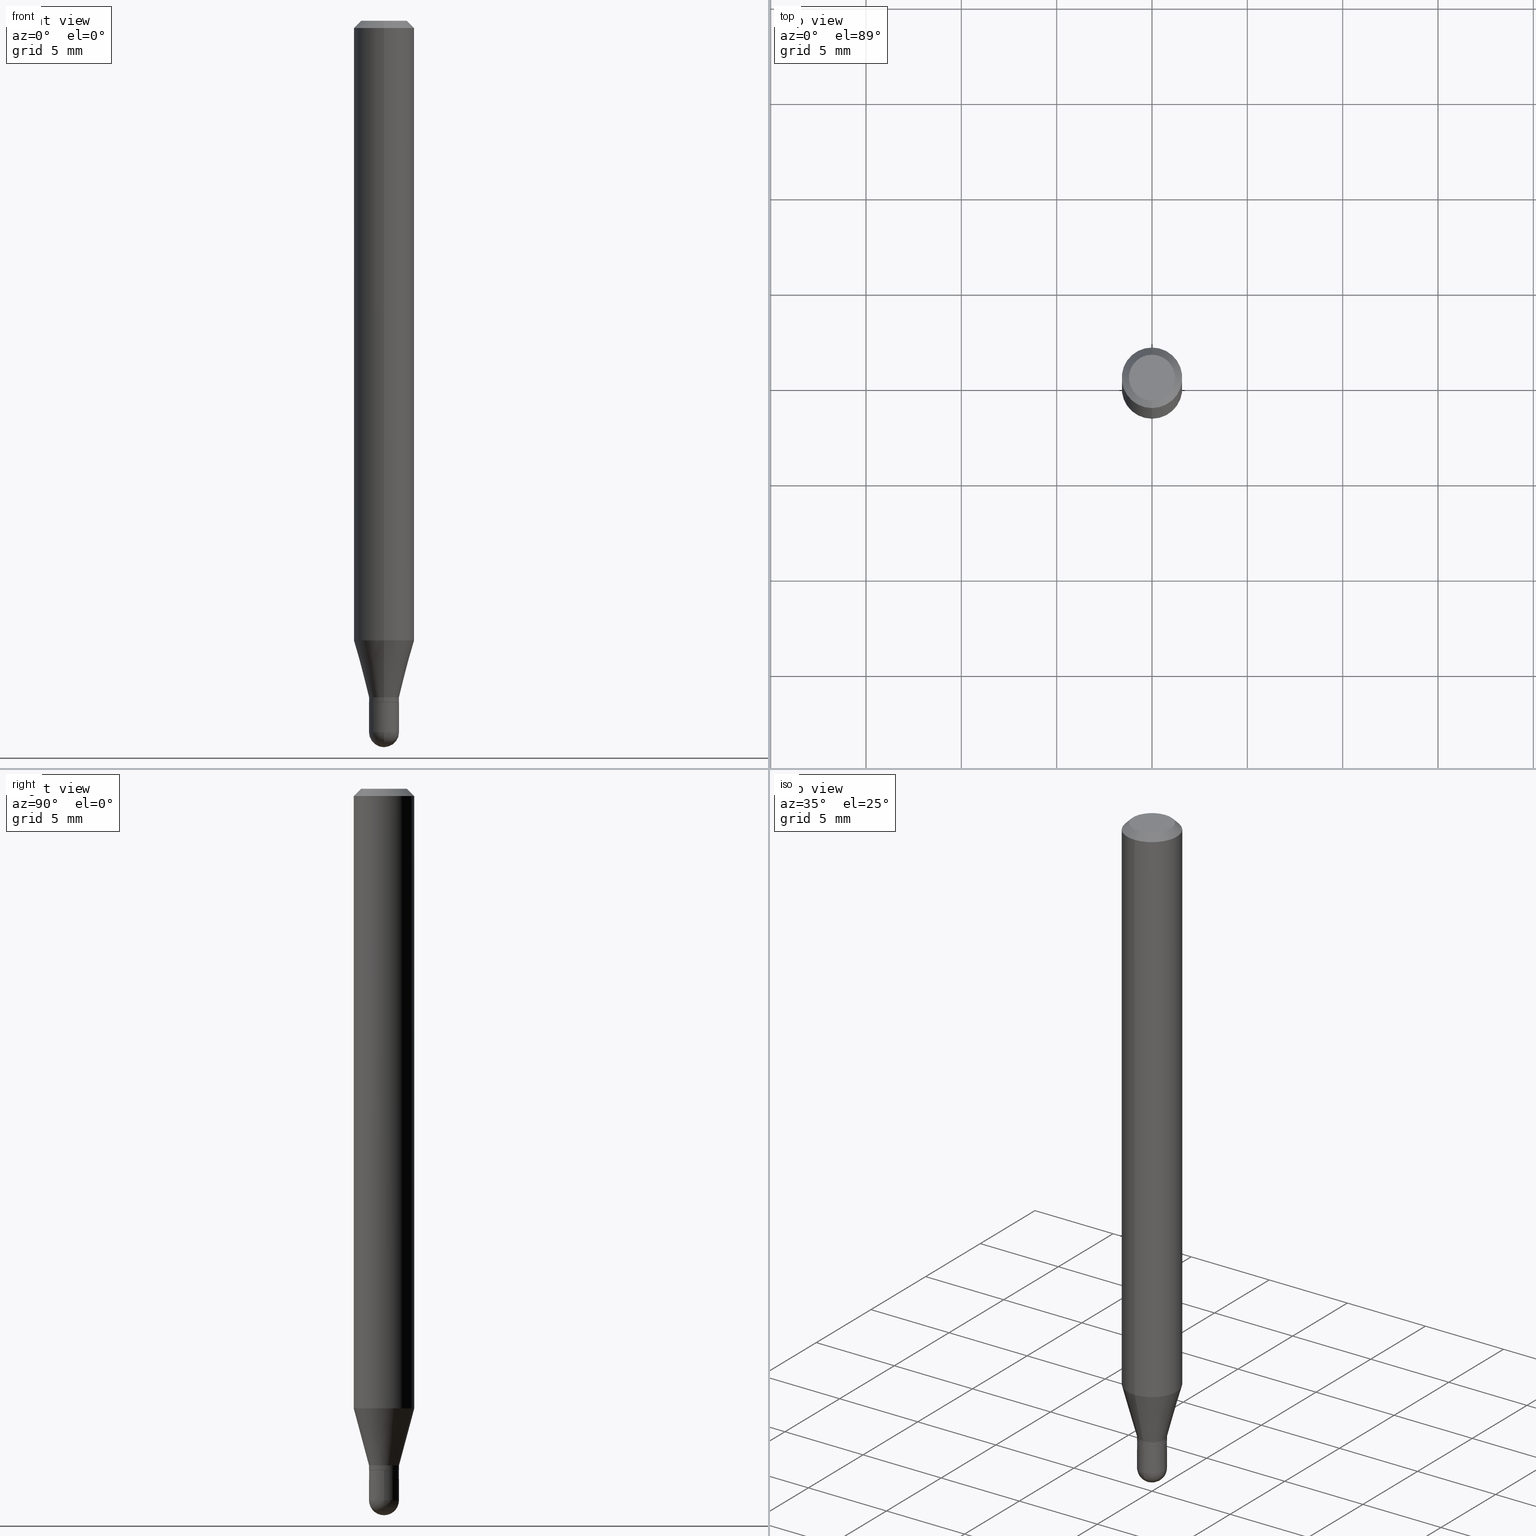
[diagram: canonical four-view strip — front | top / right | iso, engineering-drawing reading convention]
A machine part, canonical four-view strip (front | top / right | iso — engineering-drawing reading convention). The complete STEP part file that produces these views, byte-faithful:
ISO-10303-21;
HEADER;
FILE_DESCRIPTION (( 'STEP AP203' ),
    '1' );
FILE_NAME ('00796.STEP',
    '2024-03-07T18:24:14',
    ( '' ),
    ( '' ),
    'SwSTEP 2.0',
    'SolidWorks 2023',
    '' );
FILE_SCHEMA (( 'CONFIG_CONTROL_DESIGN' ));
ENDSEC;

DATA;
#1 = DIRECTION ( 'NONE',  ( 1.000000000000000000, -6.982962677686270655E-15, 0.000000000000000000 ) ) ;
#2 = EDGE_CURVE ( 'NONE', #411, #135, #207, .T. ) ;
#3 = VERTEX_POINT ( 'NONE', #219 ) ;
#4 = CARTESIAN_POINT ( 'NONE',  ( 3.440812931536846733E-29, -4.912459365563593264E-15, -1.407000000000000028 ) ) ;
#5 = AXIS2_PLACEMENT_3D ( 'NONE', #383, #31, #355 ) ;
#6 = CONICAL_SURFACE ( 'NONE', #449, 0.06250000000000000000, 0.7853981633974483900 ) ;
#7 = LOCAL_TIME ( 13, 24, 14.00000000000000000, #352 ) ;
#8 = DIRECTION ( 'NONE',  ( -4.937700262164674260E-15, -0.7071067811865632269, 0.7071067811865319186 ) ) ;
#9 = CARTESIAN_POINT ( 'NONE',  ( -2.164718430082737148E-16, -0.03099999999999992345, 1.082347123898159394E-16 ) ) ;
#10 = CYLINDRICAL_SURFACE ( 'NONE', #507, 0.03099999999999992345 ) ;
#11 = ADVANCED_FACE ( 'NONE', ( #196 ), #111, .F. ) ;
#12 = CARTESIAN_POINT ( 'NONE',  ( -2.202682480855951629E-16, -0.03100000000000513803, -1.469000000000000083 ) ) ;
#13 = CARTESIAN_POINT ( 'NONE',  ( -4.364351673553605094E-16, -0.06250000000000448253, -1.279440399561580399 ) ) ;
#14 = ORIENTED_EDGE ( 'NONE', *, *, #43, .F. ) ;
#15 = DIRECTION ( 'NONE',  ( 2.445496042314745397E-29, -3.491442335155361584E-15, -1.000000000000000000 ) ) ;
#16 = AXIS2_PLACEMENT_3D ( 'NONE', #4, #289, #444 ) ;
#17 = DIRECTION ( 'NONE',  ( -6.982962677686265922E-15, -1.000000000000000000, 3.491442335155361584E-15 ) ) ;
#18 = ORIENTED_EDGE ( 'NONE', *, *, #283, .T. ) ;
#19 = EDGE_CURVE ( 'NONE', #32, #107, #314, .T. ) ;
#20 = DIRECTION ( 'NONE',  ( 1.000000000000000000, -6.982962677686266711E-15, 4.876176775795935232E-29 ) ) ;
#21 = ORIENTED_EDGE ( 'NONE', *, *, #290, .T. ) ;
#22 = DIRECTION ( 'NONE',  ( 1.000000000000000000, -6.982962677686270655E-15, 0.000000000000000000 ) ) ;
#23 = DIRECTION ( 'NONE',  ( 5.024295867788190974E-15, 0.7071067811865681119, 0.7071067811865270336 ) ) ;
#24 = APPROVAL_STATUS ( 'not_yet_approved' ) ;
#25 = VERTEX_POINT ( 'NONE', #389 ) ;
#26 = LOCAL_TIME ( 13, 24, 14.00000000000000000, #242 ) ;
#27 = ORIENTED_EDGE ( 'NONE', *, *, #375, .T. ) ;
#28 = FACE_OUTER_BOUND ( 'NONE', #61, .T. ) ;
#29 = ADVANCED_FACE ( 'NONE', ( #501 ), #394, .T. ) ;
#30 = PERSON_AND_ORGANIZATION ( #208, #146 ) ;
#31 = DIRECTION ( 'NONE',  ( 2.445496042314745116E-29, -3.491442335155361584E-15, -1.000000000000000000 ) ) ;
#32 = VERTEX_POINT ( 'NONE', #267 ) ;
#33 = CALENDAR_DATE ( 2024, 7, 3 ) ;
#34 = DIRECTION ( 'NONE',  ( -2.445468806185136597E-29, 3.491481338843145583E-15, 1.000000000000000000 ) ) ;
#35 = VECTOR ( 'NONE', #23, 39.37007874015748143 ) ;
#36 = EDGE_CURVE ( 'NONE', #382, #107, #152, .T. ) ;
#37 = DIRECTION ( 'NONE',  ( -1.000000000000000000, 6.982962677686265922E-15, -4.883557194083112340E-29 ) ) ;
#38 = EDGE_LOOP ( 'NONE', ( #202, #471 ) ) ;
#39 = CARTESIAN_POINT ( 'NONE',  ( 2.164718430083101997E-16, 0.03099999999999487540, -1.469000000000000083 ) ) ;
#40 = ADVANCED_FACE ( 'NONE', ( #28 ), #308, .T. ) ;
#41 = CLOSED_SHELL ( 'NONE', ( #412, #223, #391, #420, #189 ) ) ;
#42 = DIRECTION ( 'NONE',  ( -2.445496042314745397E-29, 3.491442335155361584E-15, 1.000000000000000000 ) ) ;
#43 = EDGE_CURVE ( 'NONE', #99, #282, #372, .T. ) ;
#44 = CARTESIAN_POINT ( 'NONE',  ( 3.440812931536846733E-29, -4.912459365563593264E-15, -1.407000000000000028 ) ) ;
#45 = ORIENTED_EDGE ( 'NONE', *, *, #118, .T. ) ;
#46 = DIRECTION ( 'NONE',  ( 6.982962677686265922E-15, 1.000000000000000000, 0.000000000000000000 ) ) ;
#47 = DIRECTION ( 'NONE',  ( -2.445496042314745397E-29, 3.491442335155361584E-15, 1.000000000000000000 ) ) ;
#48 = CIRCLE ( 'NONE', #130, 0.03099999999999991651 ) ;
#49 = PRODUCT_DEFINITION_FORMATION_WITH_SPECIFIED_SOURCE ( 'ANY', '', #206, .NOT_KNOWN. ) ;
#50 = EDGE_CURVE ( 'NONE', #107, #32, #284, .T. ) ;
#51 = CARTESIAN_POINT ( 'NONE',  ( 3.416357971113700377E-29, -4.877544942212040003E-15, -1.397000000000000242 ) ) ;
#52 = CARTESIAN_POINT ( 'NONE',  ( 0.000000000000000000, 0.000000000000000000, 0.000000000000000000 ) ) ;
#53 = DIRECTION ( 'NONE',  ( -2.445468806185136597E-29, 3.491481338843145583E-15, 1.000000000000000000 ) ) ;
#54 = CARTESIAN_POINT ( 'NONE',  ( 4.440892098500940720E-16, 0.06249999999999995143, -0.01500000000000022669 ) ) ;
#55 = EDGE_LOOP ( 'NONE', ( #231, #370, #178, #95 ) ) ;
#56 = FACE_OUTER_BOUND ( 'NONE', #145, .T. ) ;
#57 = CARTESIAN_POINT ( 'NONE',  ( 2.164718430083086219E-16, 0.03099999999999508704, -1.407000000000000028 ) ) ;
#58 = ORIENTED_EDGE ( 'NONE', *, *, #19, .F. ) ;
#59 = AXIS2_PLACEMENT_3D ( 'NONE', #461, #276, #73 ) ;
#60 = CIRCLE ( 'NONE', #201, 0.06250000000000000000 ) ;
#61 = EDGE_LOOP ( 'NONE', ( #436, #187, #226, #392 ) ) ;
#62 = DIRECTION ( 'NONE',  ( -2.445496042314745397E-29, 3.491442335155361584E-15, 1.000000000000000000 ) ) ;
#63 = ADVANCED_BREP_SHAPE_REPRESENTATION ( '00796', ( #332, #340, #159 ), #359 ) ;
#64 = ORIENTED_EDGE ( 'NONE', *, *, #380, .F. ) ;
#65 = APPROVAL ( #344, 'UNSPECIFIED' ) ;
#66 = DATE_AND_TIME ( #33, #324 ) ;
#67 = VERTEX_POINT ( 'NONE', #244 ) ;
#68 = DIRECTION ( 'NONE',  ( -1.807323732225332900E-15, -0.2588190451025185190, 0.9659258262890689783 ) ) ;
#69 = CIRCLE ( 'NONE', #336, 0.03099999999999999978 ) ;
#70 = DIRECTION ( 'NONE',  ( -6.982962677686265922E-15, -1.000000000000000000, 3.491442335155361190E-15 ) ) ;
#71 = ORIENTED_EDGE ( 'NONE', *, *, #118, .F. ) ;
#72 = ORIENTED_EDGE ( 'NONE', *, *, #81, .F. ) ;
#73 = DIRECTION ( 'NONE',  ( -6.982962677686265922E-15, -1.000000000000000000, 4.370956789862821150E-15 ) ) ;
#74 = EDGE_CURVE ( 'NONE', #184, #266, #456, .T. ) ;
#75 = DIRECTION ( 'NONE',  ( 1.000000000000000000, -6.982962677686270655E-15, 0.000000000000000000 ) ) ;
#76 = CIRCLE ( 'NONE', #144, 0.03100000000000001713 ) ;
#77 = CIRCLE ( 'NONE', #16, 0.03049999999999999586 ) ;
#78 = CONICAL_SURFACE ( 'NONE', #511, 0.06250000000000000000, 0.7853981633974483900 ) ;
#79 = CC_DESIGN_PERSON_AND_ORGANIZATION_ASSIGNMENT ( #236, #310, ( #206 ) ) ;
#80 = ORIENTED_EDGE ( 'NONE', *, *, #108, .F. ) ;
#81 = EDGE_CURVE ( 'NONE', #25, #432, #76, .T. ) ;
#82 = CARTESIAN_POINT ( 'NONE',  ( 3.440774610302487541E-29, -4.912514243752305891E-15, -1.407000000000000028 ) ) ;
#83 = CONICAL_SURFACE ( 'NONE', #274, 0.03099999999999991651, 0.2617993877991506291 ) ;
#84 = DIRECTION ( 'NONE',  ( 4.937700262164548042E-15, 0.7071067811865451302, -0.7071067811865499042 ) ) ;
#85 = CARTESIAN_POINT ( 'NONE',  ( 0.000000000000000000, 0.000000000000000000, 0.000000000000000000 ) ) ;
#86 = DIRECTION ( 'NONE',  ( -6.982962677686265922E-15, -1.000000000000000000, 0.000000000000000000 ) ) ;
#87 = DIMENSIONAL_EXPONENTS ( 1.000000000000000000, 0.000000000000000000, 0.000000000000000000, 0.000000000000000000, 0.000000000000000000, 0.000000000000000000, 0.000000000000000000 ) ;
#88 = CARTESIAN_POINT ( 'NONE',  ( 3.668244063472120582E-31, -5.237163502733045828E-17, -0.01500000000000000812 ) ) ;
#89 = DIRECTION ( 'NONE',  ( -2.445496042314745397E-29, 3.491442335155361584E-15, 1.000000000000000000 ) ) ;
#90 = AXIS2_PLACEMENT_3D ( 'NONE', #402, #489, #86 ) ;
#91 = DIRECTION ( 'NONE',  ( -2.445468806185136597E-29, 3.491481338843145583E-15, 1.000000000000000000 ) ) ;
#92 = DIRECTION ( 'NONE',  ( -2.445496042314745397E-29, 3.491442335155361584E-15, 1.000000000000000000 ) ) ;
#93 = APPROVAL ( #378, 'UNSPECIFIED' ) ;
#94 = CARTESIAN_POINT ( 'NONE',  ( -4.364351673553916201E-16, -0.06250000000000000000, 2.182151459472100744E-16 ) ) ;
#95 = ORIENTED_EDGE ( 'NONE', *, *, #506, .F. ) ;
#96 = DIRECTION ( 'NONE',  ( -2.445468806185136597E-29, 3.491481338843145583E-15, 1.000000000000000000 ) ) ;
#97 = DIRECTION ( 'NONE',  ( -2.445496042314745397E-29, 3.491442335155361584E-15, 1.000000000000000000 ) ) ;
#98 = AXIS2_PLACEMENT_3D ( 'NONE', #430, #346, #422 ) ;
#99 = VERTEX_POINT ( 'NONE', #438 ) ;
#100 = CIRCLE ( 'NONE', #247, 0.03049999999999999586 ) ;
#101 = APPLICATION_PROTOCOL_DEFINITION ( 'international standard', 'config_control_design', 1994, #400 ) ;
#102 = APPROVAL_ROLE ( '' ) ;
#103 = ADVANCED_FACE ( 'NONE', ( #292 ), #350, .T. ) ;
#104 = ORIENTED_EDGE ( 'NONE', *, *, #108, .T. ) ;
#105 = CARTESIAN_POINT ( 'NONE',  ( 3.321787289678792287E-16, 0.03099999999999503500, -1.397000000000000242 ) ) ;
#106 = DATE_AND_TIME ( #462, #315 ) ;
#107 = VERTEX_POINT ( 'NONE', #13 ) ;
#108 = EDGE_CURVE ( 'NONE', #192, #411, #215, .T. ) ;
#109 = PERSON_AND_ORGANIZATION ( #208, #146 ) ;
#110 = ORIENTED_EDGE ( 'NONE', *, *, #408, .T. ) ;
#111 = PLANE ( 'NONE',  #5 ) ;
#112 = CIRCLE ( 'NONE', #487, 0.03099999999999991651 ) ;
#113 = ORIENTED_EDGE ( 'NONE', *, *, #293, .F. ) ;
#114 = DATE_TIME_ROLE ( 'classification_date' ) ;
#115 = DIRECTION ( 'NONE',  ( 1.000000000000000000, -6.982962677686270655E-15, 0.000000000000000000 ) ) ;
#116 = AXIS2_PLACEMENT_3D ( 'NONE', #248, #96, #75 ) ;
#117 = EDGE_LOOP ( 'NONE', ( #263, #154, #162, #427 ) ) ;
#118 = EDGE_CURVE ( 'NONE', #99, #266, #329, .T. ) ;
#119 = ADVANCED_FACE ( 'NONE', ( #183 ), #331, .T. ) ;
#120 = FACE_OUTER_BOUND ( 'NONE', #249, .T. ) ;
#121 = DIRECTION ( 'NONE',  ( -6.982962677686265922E-15, -1.000000000000000000, 3.491442335155361584E-15 ) ) ;
#122 =( CONVERSION_BASED_UNIT ( 'INCH', #297 ) LENGTH_UNIT ( ) NAMED_UNIT ( #87 ) );
#123 = AXIS2_PLACEMENT_3D ( 'NONE', #486, #302, #132 ) ;
#124 = UNCERTAINTY_MEASURE_WITH_UNIT (LENGTH_MEASURE( 1.000000000000000082E-05 ), #122, 'distance_accuracy_value', 'NONE');
#125 = CARTESIAN_POINT ( 'NONE',  ( -4.364351673553912750E-16, -0.06250000000000005551, -0.01499999999999979128 ) ) ;
#126 = DIRECTION ( 'NONE',  ( -1.000000000000000000, 7.105427357601001070E-15, -4.926315508542082329E-29 ) ) ;
#127 = DIRECTION ( 'NONE',  ( 1.000000000000000000, -6.982962677686266711E-15, 4.876176775795935232E-29 ) ) ;
#128 = DIRECTION ( 'NONE',  ( 1.839019923739602682E-15, 0.2588190451025252914, 0.9659258262890670910 ) ) ;
#129 = APPLICATION_CONTEXT ( 'configuration controlled 3d designs of mechanical parts and assemblies' ) ;
#130 = AXIS2_PLACEMENT_3D ( 'NONE', #300, #97, #492 ) ;
#131 = CC_DESIGN_APPROVAL ( #211, ( #49 ) ) ;
#132 = DIRECTION ( 'NONE',  ( -6.982962677686265922E-15, -1.000000000000000000, 0.000000000000000000 ) ) ;
#133 =( LENGTH_UNIT ( ) NAMED_UNIT ( * ) SI_UNIT ( $, .METRE. ) );
#134 = DIRECTION ( 'NONE',  ( -6.982962677686266711E-15, -1.000000000000000000, 3.491442335155361979E-15 ) ) ;
#135 = VERTEX_POINT ( 'NONE', #125 ) ;
#136 = EDGE_CURVE ( 'NONE', #32, #238, #262, .T. ) ;
#137 = DIRECTION ( 'NONE',  ( -6.982962677686266711E-15, -1.000000000000000000, 0.000000000000000000 ) ) ;
#138 = LINE ( 'NONE', #454, #428 ) ;
#139 = ORIENTED_EDGE ( 'NONE', *, *, #36, .F. ) ;
#140 = DIRECTION ( 'NONE',  ( 1.000000000000000000, -6.982962677686270655E-15, 0.000000000000000000 ) ) ;
#141 = LINE ( 'NONE', #94, #335 ) ;
#142 = ADVANCED_FACE ( 'NONE', ( #485 ), #6, .T. ) ;
#143 = PERSON_AND_ORGANIZATION ( #208, #146 ) ;
#144 = AXIS2_PLACEMENT_3D ( 'NONE', #235, #188, #245 ) ;
#145 = EDGE_LOOP ( 'NONE', ( #358, #80, #460, #311 ) ) ;
#146 = ORGANIZATION ( 'UNSPECIFIED', 'UNSPECIFIED', '' ) ;
#147 = CARTESIAN_POINT ( 'NONE',  ( -2.164718430082395226E-16, -0.03100000000000479802, -1.397000000000000242 ) ) ;
#148 = DIRECTION ( 'NONE',  ( 0.000000000000000000, 0.000000000000000000, 1.000000000000000000 ) ) ;
#149 = ADVANCED_FACE ( 'NONE', ( #367 ), #10, .T. ) ;
#150 = APPROVAL_DATE_TIME ( #306, #65 ) ;
#151 = ORIENTED_EDGE ( 'NONE', *, *, #273, .F. ) ;
#152 = LINE ( 'NONE', #157, #466 ) ;
#153 = SECURITY_CLASSIFICATION_LEVEL ( 'unclassified' ) ;
#154 = ORIENTED_EDGE ( 'NONE', *, *, #364, .T. ) ;
#155 = DIRECTION ( 'NONE',  ( -6.982962677686265922E-15, -1.000000000000000000, 0.000000000000000000 ) ) ;
#156 = DATE_TIME_ROLE ( 'creation_date' ) ;
#157 = CARTESIAN_POINT ( 'NONE',  ( -2.164718430082395226E-16, -0.03100000000000479802, -1.397000000000000242 ) ) ;
#158 = CIRCLE ( 'NONE', #439, 0.03099999999999999978 ) ;
#159 = AXIS2_PLACEMENT_3D ( 'NONE', #416, #148, #268 ) ;
#160 = DIRECTION ( 'NONE',  ( -2.445496042314745397E-29, 3.491442335155361584E-15, 1.000000000000000000 ) ) ;
#161 = DIRECTION ( 'NONE',  ( -2.445496042314745397E-29, 3.491442335155361584E-15, 1.000000000000000000 ) ) ;
#162 = ORIENTED_EDGE ( 'NONE', *, *, #470, .F. ) ;
#163 = CC_DESIGN_PERSON_AND_ORGANIZATION_ASSIGNMENT ( #194, #353, ( #349 ) ) ;
#164 = AXIS2_PLACEMENT_3D ( 'NONE', #480, #37, #203 ) ;
#165 = SPHERICAL_SURFACE ( 'NONE', #164, 0.03100000000000001713 ) ;
#166 = DIRECTION ( 'NONE',  ( -6.982962677686266711E-15, -1.000000000000000000, 0.000000000000000000 ) ) ;
#167 = ORIENTED_EDGE ( 'NONE', *, *, #477, .T. ) ;
#168 = DIRECTION ( 'NONE',  ( -6.982962677686265922E-15, -1.000000000000000000, 3.491442335155361584E-15 ) ) ;
#169 = AXIS2_PLACEMENT_3D ( 'NONE', #82, #476, #1 ) ;
#170 = FACE_OUTER_BOUND ( 'NONE', #313, .T. ) ;
#171 = CARTESIAN_POINT ( 'NONE',  ( 3.668244063472120582E-31, -5.237163502733045828E-17, -0.01500000000000000812 ) ) ;
#172 = CARTESIAN_POINT ( 'NONE',  ( -2.164718430082400403E-16, -0.03100000000000494027, -1.406500000000000083 ) ) ;
#173 = EDGE_CURVE ( 'NONE', #382, #390, #48, .T. ) ;
#174 = DIRECTION ( 'NONE',  ( -2.445468806185136877E-29, 3.491481338843145188E-15, 1.000000000000000000 ) ) ;
#175 = DIRECTION ( 'NONE',  ( -2.445468806185136597E-29, 3.491481338843145583E-15, 1.000000000000000000 ) ) ;
#176 = AXIS2_PLACEMENT_3D ( 'NONE', #424, #160, #155 ) ;
#177 = AXIS2_PLACEMENT_3D ( 'NONE', #57, #333, #278 ) ;
#178 = ORIENTED_EDGE ( 'NONE', *, *, #173, .F. ) ;
#179 = VECTOR ( 'NONE', #92, 39.37007874015748143 ) ;
#180 = DIRECTION ( 'NONE',  ( 6.982962677686265922E-15, 1.000000000000000000, -3.483106191921935554E-15 ) ) ;
#181 = CARTESIAN_POINT ( 'NONE',  ( 3.416357971113700377E-29, -4.877544942212040003E-15, -1.397000000000000242 ) ) ;
#182 = DIRECTION ( 'NONE',  ( 1.000000000000000000, -6.982962677686270655E-15, 0.000000000000000000 ) ) ;
#183 = FACE_OUTER_BOUND ( 'NONE', #323, .T. ) ;
#184 = VERTEX_POINT ( 'NONE', #341 ) ;
#185 = EDGE_CURVE ( 'NONE', #192, #238, #138, .T. ) ;
#186 = DATE_AND_TIME ( #508, #7 ) ;
#187 = ORIENTED_EDGE ( 'NONE', *, *, #19, .T. ) ;
#188 = DIRECTION ( 'NONE',  ( 1.000000000000000000, -6.982962677686265922E-15, 4.883557194083112340E-29 ) ) ;
#189 = ADVANCED_FACE ( 'NONE', ( #366 ), #319, .T. ) ;
#190 = CARTESIAN_POINT ( 'NONE',  ( 3.439590183515689387E-29, -4.910713644396017139E-15, -1.406500000000000083 ) ) ;
#191 = PERSON_AND_ORGANIZATION ( #208, #146 ) ;
#192 = VERTEX_POINT ( 'NONE', #294 ) ;
#193 = AXIS2_PLACEMENT_3D ( 'NONE', #415, #175, #20 ) ;
#194 = PERSON_AND_ORGANIZATION ( #208, #146 ) ;
#195 = ORIENTED_EDGE ( 'NONE', *, *, #477, .F. ) ;
#196 = FACE_OUTER_BOUND ( 'NONE', #301, .T. ) ;
#197 = EDGE_CURVE ( 'NONE', #266, #184, #199, .T. ) ;
#198 = ORIENTED_EDGE ( 'NONE', *, *, #506, .T. ) ;
#199 = CIRCLE ( 'NONE', #169, 0.03099999999999999978 ) ;
#200 = CARTESIAN_POINT ( 'NONE',  ( 0.03099999999999999978, -2.164718430082742572E-16, 1.511614800496739984E-30 ) ) ;
#201 = AXIS2_PLACEMENT_3D ( 'NONE', #88, #258, #406 ) ;
#202 = ORIENTED_EDGE ( 'NONE', *, *, #74, .T. ) ;
#203 = DIRECTION ( 'NONE',  ( 6.982962677686265922E-15, 1.000000000000000000, 0.000000000000000000 ) ) ;
#204 = ADVANCED_FACE ( 'NONE', ( #446 ), #291, .T. ) ;
#205 = EDGE_LOOP ( 'NONE', ( #113, #21, #493, #58 ) ) ;
#206 = PRODUCT ( '00796', '00796', '', ( #233 ) ) ;
#207 = LINE ( 'NONE', #399, #321 ) ;
#208 = PERSON ( 'UNSPECIFIED', 'UNSPECIFIED', 'UNSPECIFIED', ('UNSPECIFIED'), ('UNSPECIFIED'), ('UNSPECIFIED') ) ;
#209 = AXIS2_PLACEMENT_3D ( 'NONE', #328, #224, #121 ) ;
#210 = LINE ( 'NONE', #320, #479 ) ;
#211 = APPROVAL ( #24, 'UNSPECIFIED' ) ;
#212 = ORIENTED_EDGE ( 'NONE', *, *, #252, .F. ) ;
#213 = PLANE ( 'NONE',  #209 ) ;
#214 = ADVANCED_FACE ( 'NONE', ( #288 ), #83, .T. ) ;
#215 = CIRCLE ( 'NONE', #286, 0.04749999999999999362 ) ;
#216 = DIRECTION ( 'NONE',  ( -2.445496042314745397E-29, 3.491442335155361584E-15, 1.000000000000000000 ) ) ;
#217 = LINE ( 'NONE', #9, #179 ) ;
#218 = VECTOR ( 'NONE', #303, 39.37007874015748143 ) ;
#219 = CARTESIAN_POINT ( 'NONE',  ( 2.184918912462648729E-16, 0.03049999999999508313, -1.407000000000000028 ) ) ;
#220 = DIRECTION ( 'NONE',  ( 2.445496042314745397E-29, -3.491442335155361584E-15, -1.000000000000000000 ) ) ;
#221 = EDGE_CURVE ( 'NONE', #3, #510, #100, .T. ) ;
#222 = DIRECTION ( 'NONE',  ( -2.445496042314745397E-29, 3.491442335155361584E-15, 1.000000000000000000 ) ) ;
#223 = ADVANCED_FACE ( 'NONE', ( #170 ), #369, .T. ) ;
#224 = DIRECTION ( 'NONE',  ( -2.445496042314745116E-29, 3.491442335155361584E-15, 1.000000000000000000 ) ) ;
#225 = CARTESIAN_POINT ( 'NONE',  ( -0.03099999999999999978, 2.202682480856310560E-16, -1.524869877979020612E-30 ) ) ;
#226 = ORIENTED_EDGE ( 'NONE', *, *, #339, .T. ) ;
#227 = CARTESIAN_POINT ( 'NONE',  ( 0.03099999999999999978, -5.237222008264717388E-15, -1.469000000000000083 ) ) ;
#228 = AXIS2_PLACEMENT_3D ( 'NONE', #239, #385, #115 ) ;
#229 = DIRECTION ( 'NONE',  ( -2.445496042314745397E-29, 3.491442335155361584E-15, 1.000000000000000000 ) ) ;
#230 = CIRCLE ( 'NONE', #123, 0.03099999999999992345 ) ;
#231 = ORIENTED_EDGE ( 'NONE', *, *, #470, .T. ) ;
#232 = FACE_OUTER_BOUND ( 'NONE', #376, .T. ) ;
#233 = MECHANICAL_CONTEXT ( 'NONE', #400, 'mechanical' ) ;
#234 = EDGE_LOOP ( 'NONE', ( #151, #504, #357, #455 ) ) ;
#235 = CARTESIAN_POINT ( 'NONE',  ( 3.589742660789510177E-29, -5.132782491837937933E-15, -1.469000000000000083 ) ) ;
#236 = PERSON_AND_ORGANIZATION ( #208, #146 ) ;
#237 = PERSON_AND_ORGANIZATION_ROLE ( 'creator' ) ;
#238 = VERTEX_POINT ( 'NONE', #54 ) ;
#239 = CARTESIAN_POINT ( 'NONE',  ( 3.592393676285966338E-29, -5.128986086760581011E-15, -1.469000000000000083 ) ) ;
#240 = CALENDAR_DATE ( 2024, 7, 3 ) ;
#241 = ORIENTED_EDGE ( 'NONE', *, *, #375, .F. ) ;
#242 = COORDINATED_UNIVERSAL_TIME_OFFSET ( 5, 0, .BEHIND. ) ;
#243 = VERTEX_POINT ( 'NONE', #172 ) ;
#244 = CARTESIAN_POINT ( 'NONE',  ( 2.202682480856641142E-16, 0.03099999999999490316, -1.406500000000000083 ) ) ;
#245 = DIRECTION ( 'NONE',  ( 6.982962677686265922E-15, 1.000000000000000000, 0.000000000000000000 ) ) ;
#246 = ADVANCED_FACE ( 'NONE', ( #120 ), #213, .F. ) ;
#247 = AXIS2_PLACEMENT_3D ( 'NONE', #44, #326, #398 ) ;
#248 = CARTESIAN_POINT ( 'NONE',  ( 3.592393676285966338E-29, -5.128986086760581011E-15, -1.469000000000000083 ) ) ;
#249 = EDGE_LOOP ( 'NONE', ( #387, #379 ) ) ;
#250 = AXIS2_PLACEMENT_3D ( 'NONE', #190, #347, #458 ) ;
#251 = CC_DESIGN_SECURITY_CLASSIFICATION ( #468, ( #49 ) ) ;
#252 = EDGE_CURVE ( 'NONE', #67, #390, #437, .T. ) ;
#253 = CARTESIAN_POINT ( 'NONE',  ( 0.000000000000000000, 0.000000000000000000, 0.000000000000000000 ) ) ;
#254 = FACE_OUTER_BOUND ( 'NONE', #234, .T. ) ;
#255 = DIRECTION ( 'NONE',  ( -2.445496042314745397E-29, 3.491442335155361584E-15, 1.000000000000000000 ) ) ;
#256 = DIRECTION ( 'NONE',  ( -7.105427357601000281E-15, -1.000000000000000000, 0.000000000000000000 ) ) ;
#257 = EDGE_CURVE ( 'NONE', #510, #243, #210, .T. ) ;
#258 = DIRECTION ( 'NONE',  ( -2.445496042314745397E-29, 3.491442335155361584E-15, 1.000000000000000000 ) ) ;
#259 = DIRECTION ( 'NONE',  ( -6.982962677686265922E-15, -1.000000000000000000, 3.483106191921935554E-15 ) ) ;
#260 = AXIS2_PLACEMENT_3D ( 'NONE', #362, #126, #256 ) ;
#261 = APPROVAL_PERSON_ORGANIZATION ( #419, #211, #102 ) ;
#262 = LINE ( 'NONE', #298, #295 ) ;
#263 = ORIENTED_EDGE ( 'NONE', *, *, #279, .T. ) ;
#264 = CARTESIAN_POINT ( 'NONE',  ( -3.773273898774340269E-16, -0.04749999999999999362, 1.569813386528787925E-16 ) ) ;
#265 = CIRCLE ( 'NONE', #434, 0.04749999999999999362 ) ;
#266 = VERTEX_POINT ( 'NONE', #478 ) ;
#267 = CARTESIAN_POINT ( 'NONE',  ( 4.440892098500935790E-16, 0.06249999999999551054, -1.279440399561581065 ) ) ;
#268 = DIRECTION ( 'NONE',  ( 1.000000000000000000, 0.000000000000000000, 0.000000000000000000 ) ) ;
#269 = ORIENTED_EDGE ( 'NONE', *, *, #293, .T. ) ;
#270 = APPROVAL_DATE_TIME ( #106, #93 ) ;
#271 = COORDINATED_UNIVERSAL_TIME_OFFSET ( 5, 0, .BEHIND. ) ;
#272 = ORIENTED_EDGE ( 'NONE', *, *, #136, .T. ) ;
#273 = EDGE_CURVE ( 'NONE', #25, #282, #305, .T. ) ;
#274 = AXIS2_PLACEMENT_3D ( 'NONE', #441, #401, #166 ) ;
#275 = DATE_AND_TIME ( #240, #365 ) ;
#276 = DIRECTION ( 'NONE',  ( -2.445496042314745397E-29, 3.491442335155361584E-15, 1.000000000000000000 ) ) ;
#277 = ORIENTED_EDGE ( 'NONE', *, *, #364, .F. ) ;
#278 = DIRECTION ( 'NONE',  ( -1.000000000000000000, 6.982962677686265922E-15, -4.876176775795935793E-29 ) ) ;
#279 = EDGE_CURVE ( 'NONE', #510, #3, #77, .T. ) ;
#280 = AXIS2_PLACEMENT_3D ( 'NONE', #52, #89, #405 ) ;
#281 = ORIENTED_EDGE ( 'NONE', *, *, #2, .T. ) ;
#282 = VERTEX_POINT ( 'NONE', #12 ) ;
#283 = EDGE_CURVE ( 'NONE', #411, #192, #265, .T. ) ;
#284 = CIRCLE ( 'NONE', #59, 0.06250000000000000000 ) ;
#285 = EDGE_CURVE ( 'NONE', #238, #135, #60, .T. ) ;
#286 = AXIS2_PLACEMENT_3D ( 'NONE', #447, #229, #134 ) ;
#287 = AXIS2_PLACEMENT_3D ( 'NONE', #338, #491, #259 ) ;
#288 = FACE_OUTER_BOUND ( 'NONE', #423, .T. ) ;
#289 = DIRECTION ( 'NONE',  ( -2.445496042314745397E-29, 3.491442335155361584E-15, 1.000000000000000000 ) ) ;
#290 = EDGE_CURVE ( 'NONE', #390, #382, #112, .T. ) ;
#291 = CYLINDRICAL_SURFACE ( 'NONE', #474, 0.03099999999999992345 ) ;
#292 = FACE_OUTER_BOUND ( 'NONE', #495, .T. ) ;
#293 = EDGE_CURVE ( 'NONE', #390, #32, #330, .T. ) ;
#294 = CARTESIAN_POINT ( 'NONE',  ( 3.840629472727447874E-16, 0.04749999999999999362, -1.747056831868805136E-16 ) ) ;
#295 = VECTOR ( 'NONE', #47, 39.37007874015748143 ) ;
#296 = CIRCLE ( 'NONE', #287, 0.06250000000000000000 ) ;
#297 = LENGTH_MEASURE_WITH_UNIT ( LENGTH_MEASURE( 0.02539999999999999897 ), #133 );
#298 = CARTESIAN_POINT ( 'NONE',  ( 4.440892098500625669E-16, 0.06250000000000000000, -2.182151459472100744E-16 ) ) ;
#299 = ORIENTED_EDGE ( 'NONE', *, *, #185, .F. ) ;
#300 = CARTESIAN_POINT ( 'NONE',  ( 3.416357971113700377E-29, -4.877544942212040003E-15, -1.397000000000000242 ) ) ;
#301 = EDGE_LOOP ( 'NONE', ( #104, #18 ) ) ;
#302 = DIRECTION ( 'NONE',  ( -2.445496042314745397E-29, 3.491442335155361584E-15, 1.000000000000000000 ) ) ;
#303 = DIRECTION ( 'NONE',  ( -2.445468806185136877E-29, 3.491481338843145188E-15, 1.000000000000000000 ) ) ;
#304 = AXIS2_PLACEMENT_3D ( 'NONE', #393, #34, #22 ) ;
#305 = CIRCLE ( 'NONE', #260, 0.03100000000000001713 ) ;
#306 = DATE_AND_TIME ( #494, #26 ) ;
#307 = ORIENTED_EDGE ( 'NONE', *, *, #257, .T. ) ;
#308 = CYLINDRICAL_SURFACE ( 'NONE', #363, 0.06250000000000000000 ) ;
#309 = LINE ( 'NONE', #413, #35 ) ;
#310 = PERSON_AND_ORGANIZATION_ROLE ( 'design_owner' ) ;
#311 = ORIENTED_EDGE ( 'NONE', *, *, #285, .T. ) ;
#312 = SHAPE_DEFINITION_REPRESENTATION ( #386, #63 ) ;
#313 = EDGE_LOOP ( 'NONE', ( #72, #500, #14, #490 ) ) ;
#314 = CIRCLE ( 'NONE', #98, 0.06250000000000000000 ) ;
#315 = LOCAL_TIME ( 13, 24, 14.00000000000000000, #348 ) ;
#316 = APPROVAL_ROLE ( '' ) ;
#317 = PLANE ( 'NONE',  #177 ) ;
#318 = CC_DESIGN_DATE_AND_TIME_ASSIGNMENT ( #275, #156, ( #349 ) ) ;
#319 = CYLINDRICAL_SURFACE ( 'NONE', #351, 0.03099999999999999978 ) ;
#320 = CARTESIAN_POINT ( 'NONE',  ( -2.129803616693966881E-16, -0.03050000000000491207, -1.407000000000000028 ) ) ;
#321 = VECTOR ( 'NONE', #445, 39.37007874015748143 ) ;
#322 = VECTOR ( 'NONE', #128, 39.37007874015748143 ) ;
#323 = EDGE_LOOP ( 'NONE', ( #361, #272, #195, #396 ) ) ;
#324 = LOCAL_TIME ( 13, 24, 14.00000000000000000, #271 ) ;
#325 = CC_DESIGN_PERSON_AND_ORGANIZATION_ASSIGNMENT ( #388, #431, ( #468 ) ) ;
#326 = DIRECTION ( 'NONE',  ( -2.445496042314745397E-29, 3.491442335155361584E-15, 1.000000000000000000 ) ) ;
#327 = CARTESIAN_POINT ( 'NONE',  ( 3.592393676285966338E-29, -5.128986086760581011E-15, -1.469000000000000083 ) ) ;
#328 = CARTESIAN_POINT ( 'NONE',  ( 3.440812931536846733E-29, -4.912459365563593264E-15, -1.407000000000000028 ) ) ;
#329 = LINE ( 'NONE', #225, #417 ) ;
#330 = LINE ( 'NONE', #484, #322 ) ;
#331 = CYLINDRICAL_SURFACE ( 'NONE', #280, 0.06250000000000000000 ) ;
#332 = MANIFOLD_SOLID_BREP ( 'Body-Move/Copy2[1]', #41 ) ;
#333 = DIRECTION ( 'NONE',  ( 2.438088387897960049E-29, -3.491481338843145188E-15, -1.000000000000000000 ) ) ;
#334 = CARTESIAN_POINT ( 'NONE',  ( 3.592393676285966338E-29, -5.128986086760581011E-15, -1.469000000000000083 ) ) ;
#335 = VECTOR ( 'NONE', #161, 39.37007874015748143 ) ;
#336 = AXIS2_PLACEMENT_3D ( 'NONE', #334, #410, #182 ) ;
#337 = VERTEX_POINT ( 'NONE', #227 ) ;
#338 = CARTESIAN_POINT ( 'NONE',  ( 3.668244063472120582E-31, -5.237163502733045828E-17, -0.01500000000000000812 ) ) ;
#339 = EDGE_CURVE ( 'NONE', #107, #135, #141, .T. ) ;
#340 = MANIFOLD_SOLID_BREP ( 'Body-Move/Copy2[2]', #496 ) ;
#341 = CARTESIAN_POINT ( 'NONE',  ( 0.03099999999999999978, -5.128986086760580222E-15, -1.407000000000000028 ) ) ;
#342 = ORIENTED_EDGE ( 'NONE', *, *, #290, .F. ) ;
#343 = APPLICATION_PROTOCOL_DEFINITION ( 'international standard', 'config_control_design', 1994, #129 ) ;
#344 = APPROVAL_STATUS ( 'not_yet_approved' ) ;
#345 = EDGE_LOOP ( 'NONE', ( #212, #452, #198, #342 ) ) ;
#346 = DIRECTION ( 'NONE',  ( -2.445496042314745397E-29, 3.491442335155361584E-15, 1.000000000000000000 ) ) ;
#347 = DIRECTION ( 'NONE',  ( -2.445496042314745397E-29, 3.491442335155361584E-15, 1.000000000000000000 ) ) ;
#348 = COORDINATED_UNIVERSAL_TIME_OFFSET ( 5, 0, .BEHIND. ) ;
#349 = PRODUCT_DEFINITION ( 'UNKNOWN', '', #49, #442 ) ;
#350 = CONICAL_SURFACE ( 'NONE', #90, 0.03049999999999999586, 0.7853981633974739252 ) ;
#351 = AXIS2_PLACEMENT_3D ( 'NONE', #85, #91, #127 ) ;
#352 = COORDINATED_UNIVERSAL_TIME_OFFSET ( 5, 0, .BEHIND. ) ;
#353 = PERSON_AND_ORGANIZATION_ROLE ( 'creator' ) ;
#354 = EDGE_LOOP ( 'NONE', ( #421, #281, #167, #299 ) ) ;
#355 = DIRECTION ( 'NONE',  ( 6.982962677686265922E-15, 1.000000000000000000, -3.491442335155361584E-15 ) ) ;
#356 = EDGE_LOOP ( 'NONE', ( #71, #472, #110, #27, #475 ) ) ;
#357 = ORIENTED_EDGE ( 'NONE', *, *, #465, .F. ) ;
#358 = ORIENTED_EDGE ( 'NONE', *, *, #2, .F. ) ;
#359 =( GEOMETRIC_REPRESENTATION_CONTEXT ( 3 ) GLOBAL_UNCERTAINTY_ASSIGNED_CONTEXT ( ( #124 ) ) GLOBAL_UNIT_ASSIGNED_CONTEXT ( ( #122, #459, #425 ) ) REPRESENTATION_CONTEXT ( 'NONE', 'WORKASPACE' ) );
#360 = DIRECTION ( 'NONE',  ( -1.000000000000000000, 6.982962677686265922E-15, -4.883557194083112340E-29 ) ) ;
#361 = ORIENTED_EDGE ( 'NONE', *, *, #50, .T. ) ;
#362 = CARTESIAN_POINT ( 'NONE',  ( 3.589742660789510177E-29, -5.132782491837937933E-15, -1.469000000000000083 ) ) ;
#363 = AXIS2_PLACEMENT_3D ( 'NONE', #469, #62, #70 ) ;
#364 = EDGE_CURVE ( 'NONE', #3, #67, #309, .T. ) ;
#365 = LOCAL_TIME ( 13, 24, 14.00000000000000000, #502 ) ;
#366 = FACE_OUTER_BOUND ( 'NONE', #356, .T. ) ;
#367 = FACE_OUTER_BOUND ( 'NONE', #345, .T. ) ;
#368 = DIRECTION ( 'NONE',  ( -6.982962677686266711E-15, -1.000000000000000000, 0.000000000000000000 ) ) ;
#369 = SPHERICAL_SURFACE ( 'NONE', #384, 0.03100000000000001713 ) ;
#370 = ORIENTED_EDGE ( 'NONE', *, *, #252, .T. ) ;
#371 = CARTESIAN_POINT ( 'NONE',  ( 3.668244063472120582E-31, -5.237163502733045828E-17, -0.01500000000000000812 ) ) ;
#372 = CIRCLE ( 'NONE', #228, 0.03099999999999999978 ) ;
#373 = FACE_OUTER_BOUND ( 'NONE', #205, .T. ) ;
#374 = AXIS2_PLACEMENT_3D ( 'NONE', #181, #377, #137 ) ;
#375 = EDGE_CURVE ( 'NONE', #337, #184, #498, .T. ) ;
#376 = EDGE_LOOP ( 'NONE', ( #481, #45, #463, #241, #464 ) ) ;
#377 = DIRECTION ( 'NONE',  ( -2.445496042314745397E-29, 3.491442335155361584E-15, 1.000000000000000000 ) ) ;
#378 = APPROVAL_STATUS ( 'not_yet_approved' ) ;
#379 = ORIENTED_EDGE ( 'NONE', *, *, #221, .F. ) ;
#380 = EDGE_CURVE ( 'NONE', #67, #243, #397, .T. ) ;
#381 = APPROVAL_ROLE ( '' ) ;
#382 = VERTEX_POINT ( 'NONE', #147 ) ;
#383 = CARTESIAN_POINT ( 'NONE',  ( 3.316907271900976096E-16, 0.04749999999999999362, -1.702745970533800772E-16 ) ) ;
#384 = AXIS2_PLACEMENT_3D ( 'NONE', #409, #360, #46 ) ;
#385 = DIRECTION ( 'NONE',  ( -2.445468806185136597E-29, 3.491481338843145583E-15, 1.000000000000000000 ) ) ;
#386 = PRODUCT_DEFINITION_SHAPE ( 'NONE', 'NONE',  #349 ) ;
#387 = ORIENTED_EDGE ( 'NONE', *, *, #279, .F. ) ;
#388 = PERSON_AND_ORGANIZATION ( #208, #146 ) ;
#389 = CARTESIAN_POINT ( 'NONE',  ( 3.666877701529477375E-29, -5.239120210803396243E-15, -1.500000000000000222 ) ) ;
#390 = VERTEX_POINT ( 'NONE', #105 ) ;
#391 = ADVANCED_FACE ( 'NONE', ( #433 ), #317, .F. ) ;
#392 = ORIENTED_EDGE ( 'NONE', *, *, #285, .F. ) ;
#393 = CARTESIAN_POINT ( 'NONE',  ( 3.440774610302487541E-29, -4.912514243752305891E-15, -1.407000000000000028 ) ) ;
#394 = CONICAL_SURFACE ( 'NONE', #176, 0.03049999999999999586, 0.7853981633974739252 ) ;
#395 = CYLINDRICAL_SURFACE ( 'NONE', #193, 0.03099999999999999978 ) ;
#396 = ORIENTED_EDGE ( 'NONE', *, *, #339, .F. ) ;
#397 = CIRCLE ( 'NONE', #250, 0.03099999999999992345 ) ;
#398 = DIRECTION ( 'NONE',  ( -6.982962677686265922E-15, -1.000000000000000000, 0.000000000000000000 ) ) ;
#399 = CARTESIAN_POINT ( 'NONE',  ( -4.287811248607203282E-16, -0.06250000000000005551, -0.01499999999999979128 ) ) ;
#400 = APPLICATION_CONTEXT ( 'configuration controlled 3d designs of mechanical parts and assemblies' ) ;
#401 = DIRECTION ( 'NONE',  ( -2.445496042314745397E-29, 3.491442335155361584E-15, 1.000000000000000000 ) ) ;
#402 = CARTESIAN_POINT ( 'NONE',  ( 3.440812931536846733E-29, -4.912459365563593264E-15, -1.407000000000000028 ) ) ;
#403 = ADVANCED_FACE ( 'NONE', ( #373 ), #467, .T. ) ;
#404 = CARTESIAN_POINT ( 'NONE',  ( 2.167240720526205134E-46, -3.094176343444650154E-32, -8.862172267000840541E-18 ) ) ;
#405 = DIRECTION ( 'NONE',  ( -6.982962677686265922E-15, -1.000000000000000000, 3.491442335155361190E-15 ) ) ;
#406 = DIRECTION ( 'NONE',  ( -6.982962677686265922E-15, -1.000000000000000000, 3.483106191921935554E-15 ) ) ;
#407 = CARTESIAN_POINT ( 'NONE',  ( 0.000000000000000000, 0.000000000000000000, 0.000000000000000000 ) ) ;
#408 = EDGE_CURVE ( 'NONE', #282, #337, #497, .T. ) ;
#409 = CARTESIAN_POINT ( 'NONE',  ( 3.589742660789510177E-29, -5.132782491837937933E-15, -1.469000000000000083 ) ) ;
#410 = DIRECTION ( 'NONE',  ( -2.445468806185136597E-29, 3.491481338843145583E-15, 1.000000000000000000 ) ) ;
#411 = VERTEX_POINT ( 'NONE', #264 ) ;
#412 = ADVANCED_FACE ( 'NONE', ( #232 ), #395, .T. ) ;
#413 = CARTESIAN_POINT ( 'NONE',  ( 2.167155344068648921E-16, 0.03049999999999508313, -1.407000000000000028 ) ) ;
#414 = ORIENTED_EDGE ( 'NONE', *, *, #50, .F. ) ;
#415 = CARTESIAN_POINT ( 'NONE',  ( 0.000000000000000000, 0.000000000000000000, 0.000000000000000000 ) ) ;
#416 = CARTESIAN_POINT ( 'NONE',  ( 0.000000000000000000, 0.000000000000000000, 0.000000000000000000 ) ) ;
#417 = VECTOR ( 'NONE', #174, 39.37007874015748143 ) ;
#418 = CC_DESIGN_APPROVAL ( #93, ( #349 ) ) ;
#419 = PERSON_AND_ORGANIZATION ( #208, #146 ) ;
#420 = ADVANCED_FACE ( 'NONE', ( #254 ), #165, .T. ) ;
#421 = ORIENTED_EDGE ( 'NONE', *, *, #283, .F. ) ;
#422 = DIRECTION ( 'NONE',  ( -6.982962677686265922E-15, -1.000000000000000000, 4.370956789862821150E-15 ) ) ;
#423 = EDGE_LOOP ( 'NONE', ( #505, #269, #414, #139 ) ) ;
#424 = CARTESIAN_POINT ( 'NONE',  ( 3.440812931536846733E-29, -4.912459365563593264E-15, -1.407000000000000028 ) ) ;
#425 =( NAMED_UNIT ( * ) SI_UNIT ( $, .STERADIAN. ) SOLID_ANGLE_UNIT ( ) );
#426 = APPROVAL_DATE_TIME ( #186, #211 ) ;
#427 = ORIENTED_EDGE ( 'NONE', *, *, #257, .F. ) ;
#428 = VECTOR ( 'NONE', #84, 39.37007874015748143 ) ;
#429 = APPROVAL_PERSON_ORGANIZATION ( #30, #65, #316 ) ;
#430 = CARTESIAN_POINT ( 'NONE',  ( 3.128866433505442183E-29, -4.467092376337393901E-15, -1.279440399561580843 ) ) ;
#431 = PERSON_AND_ORGANIZATION_ROLE ( 'classification_officer' ) ;
#432 = VERTEX_POINT ( 'NONE', #39 ) ;
#433 = FACE_OUTER_BOUND ( 'NONE', #38, .T. ) ;
#434 = AXIS2_PLACEMENT_3D ( 'NONE', #404, #216, #483 ) ;
#435 = CC_DESIGN_APPROVAL ( #65, ( #468 ) ) ;
#436 = ORIENTED_EDGE ( 'NONE', *, *, #136, .F. ) ;
#437 = LINE ( 'NONE', #482, #457 ) ;
#438 = CARTESIAN_POINT ( 'NONE',  ( -0.03099999999999999978, -4.800481917170811803E-15, -1.469000000000000083 ) ) ;
#439 = AXIS2_PLACEMENT_3D ( 'NONE', #327, #53, #140 ) ;
#440 = CC_DESIGN_PERSON_AND_ORGANIZATION_ASSIGNMENT ( #143, #237, ( #49 ) ) ;
#441 = CARTESIAN_POINT ( 'NONE',  ( 3.416357971113700377E-29, -4.877544942212040003E-15, -1.397000000000000242 ) ) ;
#442 = DESIGN_CONTEXT ( 'detailed design', #129, 'design' ) ;
#443 = DIRECTION ( 'NONE',  ( 6.982962677686265922E-15, 1.000000000000000000, -3.483106191921935554E-15 ) ) ;
#444 = DIRECTION ( 'NONE',  ( -6.982962677686265922E-15, -1.000000000000000000, 0.000000000000000000 ) ) ;
#445 = DIRECTION ( 'NONE',  ( -4.851104656540964275E-15, -0.7071067811865500152, -0.7071067811865450192 ) ) ;
#446 = FACE_OUTER_BOUND ( 'NONE', #55, .T. ) ;
#447 = CARTESIAN_POINT ( 'NONE',  ( 2.167240720526205134E-46, -3.094176343444650154E-32, -8.862172267000840541E-18 ) ) ;
#448 = CC_DESIGN_PERSON_AND_ORGANIZATION_ASSIGNMENT ( #109, #499, ( #49 ) ) ;
#449 = AXIS2_PLACEMENT_3D ( 'NONE', #171, #220, #443 ) ;
#450 = APPROVAL_PERSON_ORGANIZATION ( #191, #93, #381 ) ;
#451 = DIRECTION ( 'NONE',  ( -2.445496042314745397E-29, 3.491442335155361584E-15, 1.000000000000000000 ) ) ;
#452 = ORIENTED_EDGE ( 'NONE', *, *, #380, .T. ) ;
#453 = PRODUCT_RELATED_PRODUCT_CATEGORY ( 'detail', '', ( #206 ) ) ;
#454 = CARTESIAN_POINT ( 'NONE',  ( 4.364351673553919652E-16, 0.06249999999999995143, -0.01500000000000022669 ) ) ;
#455 = ORIENTED_EDGE ( 'NONE', *, *, #408, .F. ) ;
#456 = CIRCLE ( 'NONE', #304, 0.03099999999999999978 ) ;
#457 = VECTOR ( 'NONE', #42, 39.37007874015748143 ) ;
#458 = DIRECTION ( 'NONE',  ( -6.982962677686265922E-15, -1.000000000000000000, 0.000000000000000000 ) ) ;
#459 =( NAMED_UNIT ( * ) PLANE_ANGLE_UNIT ( ) SI_UNIT ( $, .RADIAN. ) );
#460 = ORIENTED_EDGE ( 'NONE', *, *, #185, .T. ) ;
#461 = CARTESIAN_POINT ( 'NONE',  ( 3.128866433505442183E-29, -4.467092376337393901E-15, -1.279440399561580843 ) ) ;
#462 = CALENDAR_DATE ( 2024, 7, 3 ) ;
#463 = ORIENTED_EDGE ( 'NONE', *, *, #74, .F. ) ;
#464 = ORIENTED_EDGE ( 'NONE', *, *, #465, .T. ) ;
#465 = EDGE_CURVE ( 'NONE', #337, #432, #158, .T. ) ;
#466 = VECTOR ( 'NONE', #68, 39.37007874015748854 ) ;
#467 = CONICAL_SURFACE ( 'NONE', #374, 0.03099999999999991651, 0.2617993877991506291 ) ;
#468 = SECURITY_CLASSIFICATION ( '', '', #153 ) ;
#469 = CARTESIAN_POINT ( 'NONE',  ( 0.000000000000000000, 0.000000000000000000, 0.000000000000000000 ) ) ;
#470 = EDGE_CURVE ( 'NONE', #243, #67, #230, .T. ) ;
#471 = ORIENTED_EDGE ( 'NONE', *, *, #197, .T. ) ;
#472 = ORIENTED_EDGE ( 'NONE', *, *, #43, .T. ) ;
#473 = ADVANCED_FACE ( 'NONE', ( #56 ), #78, .T. ) ;
#474 = AXIS2_PLACEMENT_3D ( 'NONE', #253, #255, #168 ) ;
#475 = ORIENTED_EDGE ( 'NONE', *, *, #197, .F. ) ;
#476 = DIRECTION ( 'NONE',  ( -2.445468806185136597E-29, 3.491481338843145583E-15, 1.000000000000000000 ) ) ;
#477 = EDGE_CURVE ( 'NONE', #135, #238, #296, .T. ) ;
#478 = CARTESIAN_POINT ( 'NONE',  ( -0.03099999999999999978, -4.800481917170811803E-15, -1.407000000000000028 ) ) ;
#479 = VECTOR ( 'NONE', #8, 39.37007874015748143 ) ;
#480 = CARTESIAN_POINT ( 'NONE',  ( 3.589742660789510177E-29, -5.132782491837937933E-15, -1.469000000000000083 ) ) ;
#481 = ORIENTED_EDGE ( 'NONE', *, *, #509, .T. ) ;
#482 = CARTESIAN_POINT ( 'NONE',  ( 2.202682480856304644E-16, 0.03099999999999992345, -1.082347123898159394E-16 ) ) ;
#483 = DIRECTION ( 'NONE',  ( -6.982962677686266711E-15, -1.000000000000000000, 3.491442335155361979E-15 ) ) ;
#484 = CARTESIAN_POINT ( 'NONE',  ( 2.202682480856645826E-16, 0.03099999999999503847, -1.397000000000000242 ) ) ;
#485 = FACE_OUTER_BOUND ( 'NONE', #354, .T. ) ;
#486 = CARTESIAN_POINT ( 'NONE',  ( 3.439590183515689387E-29, -4.910713644396017139E-15, -1.406500000000000083 ) ) ;
#487 = AXIS2_PLACEMENT_3D ( 'NONE', #51, #222, #368 ) ;
#488 = CARTESIAN_POINT ( 'NONE',  ( -2.129803616693966881E-16, -0.03050000000000491207, -1.407000000000000028 ) ) ;
#489 = DIRECTION ( 'NONE',  ( -2.445496042314745397E-29, 3.491442335155361584E-15, 1.000000000000000000 ) ) ;
#490 = ORIENTED_EDGE ( 'NONE', *, *, #509, .F. ) ;
#491 = DIRECTION ( 'NONE',  ( -2.445496042314745397E-29, 3.491442335155361584E-15, 1.000000000000000000 ) ) ;
#492 = DIRECTION ( 'NONE',  ( -6.982962677686266711E-15, -1.000000000000000000, 0.000000000000000000 ) ) ;
#493 = ORIENTED_EDGE ( 'NONE', *, *, #36, .T. ) ;
#494 = CALENDAR_DATE ( 2024, 7, 3 ) ;
#495 = EDGE_LOOP ( 'NONE', ( #277, #512, #307, #64 ) ) ;
#496 = CLOSED_SHELL ( 'NONE', ( #204, #29, #142, #119, #214, #403, #40, #473, #11, #246, #103, #149 ) ) ;
#497 = CIRCLE ( 'NONE', #116, 0.03099999999999999978 ) ;
#498 = LINE ( 'NONE', #200, #218 ) ;
#499 = PERSON_AND_ORGANIZATION_ROLE ( 'design_supplier' ) ;
#500 = ORIENTED_EDGE ( 'NONE', *, *, #273, .T. ) ;
#501 = FACE_OUTER_BOUND ( 'NONE', #117, .T. ) ;
#502 = COORDINATED_UNIVERSAL_TIME_OFFSET ( 5, 0, .BEHIND. ) ;
#503 = CC_DESIGN_DATE_AND_TIME_ASSIGNMENT ( #66, #114, ( #468 ) ) ;
#504 = ORIENTED_EDGE ( 'NONE', *, *, #81, .T. ) ;
#505 = ORIENTED_EDGE ( 'NONE', *, *, #173, .T. ) ;
#506 = EDGE_CURVE ( 'NONE', #243, #382, #217, .T. ) ;
#507 = AXIS2_PLACEMENT_3D ( 'NONE', #407, #451, #17 ) ;
#508 = CALENDAR_DATE ( 2024, 7, 3 ) ;
#509 = EDGE_CURVE ( 'NONE', #432, #99, #69, .T. ) ;
#510 = VERTEX_POINT ( 'NONE', #488 ) ;
#511 = AXIS2_PLACEMENT_3D ( 'NONE', #371, #15, #180 ) ;
#512 = ORIENTED_EDGE ( 'NONE', *, *, #221, .T. ) ;
ENDSEC;
END-ISO-10303-21;
